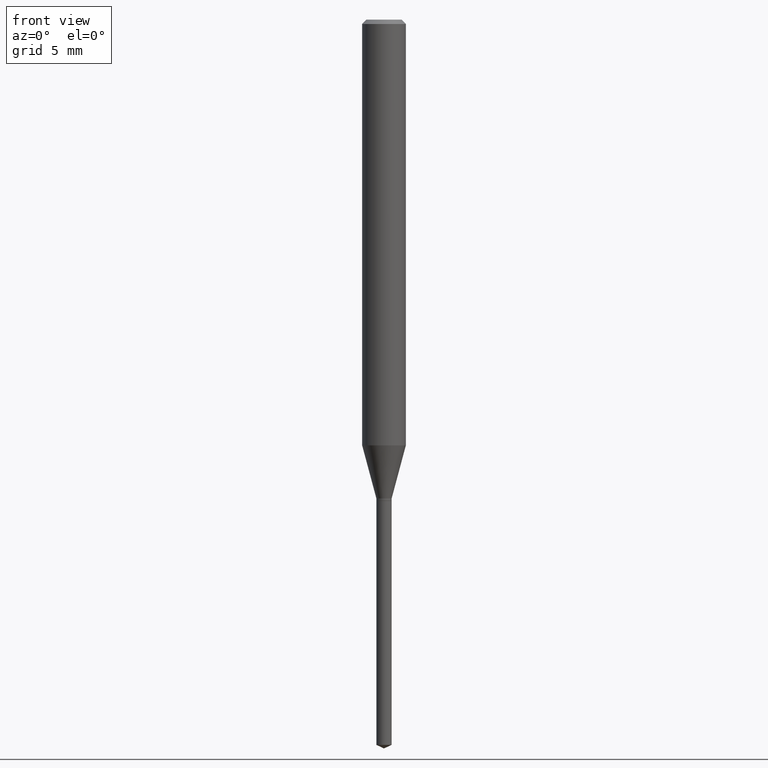
[diagram: clean part render]
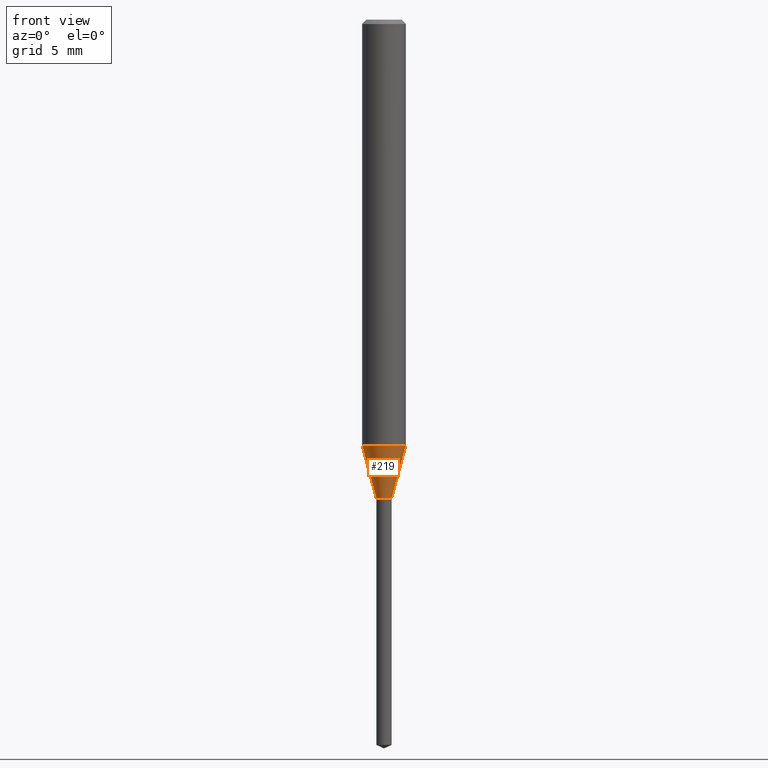
[diagram: same view with one face highlighted and labeled with its STEP entity id]
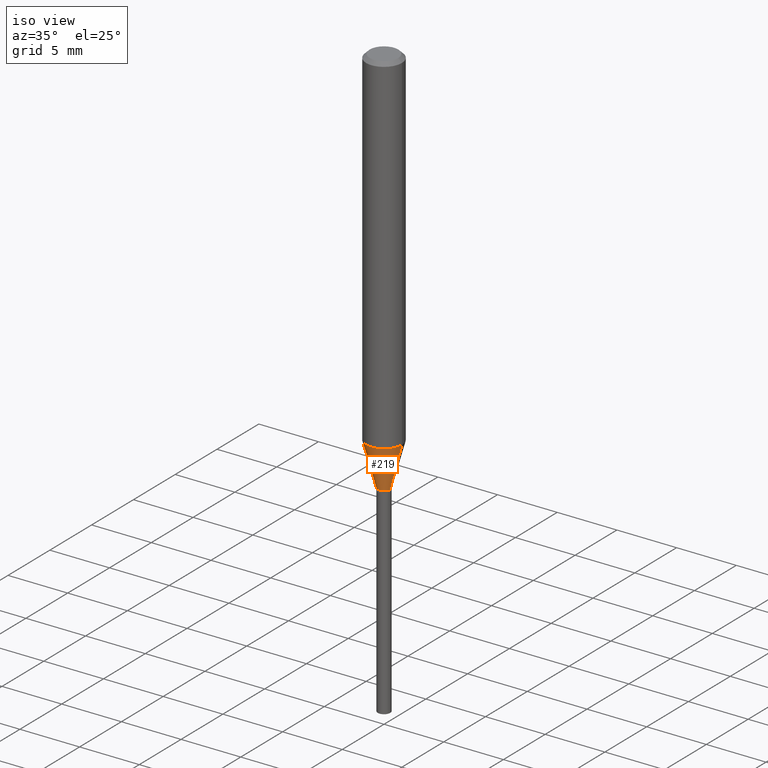
[diagram: same view with one face highlighted and labeled with its STEP entity id]
A machine part, front view. The second image highlights one B-rep face of the part: STEP entity #219.
A second angle (iso view) of the same face is appended — the face is thin or edge-on in the first view.
In plain terms, the highlighted conical surface has half-angle 15 deg.
Its self-contained STEP definition (entity closure, byte-faithful):
#9 = CARTESIAN_POINT ( 'NONE',  ( 3.163213900800474296E-29, -4.516231111793608804E-15, -1.293500000000000094 ) ) ;
#27 = CARTESIAN_POINT ( 'NONE',  ( -0.02065000000000002944, -4.379454758674850674E-15, -1.293500000000000094 ) ) ;
#35 = AXIS2_PLACEMENT_3D ( 'NONE', #216, #178, #324 ) ;
#42 = AXIS2_PLACEMENT_3D ( 'NONE', #9, #416, #197 ) ;
#52 = LINE ( 'NONE', #359, #215 ) ;
#53 = CONICAL_SURFACE ( 'NONE', #42, 0.02065000000000002944, 0.2617993877991499629 ) ;
#101 = EDGE_CURVE ( 'NONE', #363, #140, #338, .T. ) ;
#140 = VERTEX_POINT ( 'NONE', #235 ) ;
#159 = LINE ( 'NONE', #418, #322 ) ;
#167 = AXIS2_PLACEMENT_3D ( 'NONE', #206, #469, #463 ) ;
#178 = DIRECTION ( 'NONE',  ( -2.445468806185136597E-29, 3.491481338843145583E-15, 1.000000000000000000 ) ) ;
#188 = EDGE_CURVE ( 'NONE', #261, #140, #52, .T. ) ;
#197 = DIRECTION ( 'NONE',  ( 1.000000000000000000, -6.982962677686254878E-15, 0.000000000000000000 ) ) ;
#200 = EDGE_CURVE ( 'NONE', #473, #261, #433, .T. ) ;
#205 = ORIENTED_EDGE ( 'NONE', *, *, #253, .F. ) ;
#206 = CARTESIAN_POINT ( 'NONE',  ( 2.812751929612976794E-29, -4.015864298984345288E-15, -1.150189248989355040 ) ) ;
#215 = VECTOR ( 'NONE', #399, 39.37007874015748854 ) ;
#216 = CARTESIAN_POINT ( 'NONE',  ( 3.163213900800474296E-29, -4.516231111793608804E-15, -1.293500000000000094 ) ) ;
#219 = ADVANCED_FACE ( 'NONE', ( #227 ), #53, .T. ) ;
#222 = ORIENTED_EDGE ( 'NONE', *, *, #188, .T. ) ;
#227 = FACE_OUTER_BOUND ( 'NONE', #316, .T. ) ;
#235 = CARTESIAN_POINT ( 'NONE',  ( 0.05905000000000015098, -4.428208245101720208E-15, -1.150189248989355040 ) ) ;
#243 = ORIENTED_EDGE ( 'NONE', *, *, #200, .T. ) ;
#253 = EDGE_CURVE ( 'NONE', #473, #363, #159, .T. ) ;
#261 = VERTEX_POINT ( 'NONE', #468 ) ;
#315 = CARTESIAN_POINT ( 'NONE',  ( -0.05905000000000015098, -3.596288813518005006E-15, -1.150189248989355040 ) ) ;
#316 = EDGE_LOOP ( 'NONE', ( #205, #243, #222, #353 ) ) ;
#322 = VECTOR ( 'NONE', #458, 39.37007874015748854 ) ;
#324 = DIRECTION ( 'NONE',  ( 1.000000000000000000, -6.982962677686254878E-15, 0.000000000000000000 ) ) ;
#338 = CIRCLE ( 'NONE', #167, 0.05905000000000014404 ) ;
#353 = ORIENTED_EDGE ( 'NONE', *, *, #101, .F. ) ;
#359 = CARTESIAN_POINT ( 'NONE',  ( 0.02065000000000002944, -4.660429291087830521E-15, -1.293500000000000094 ) ) ;
#363 = VERTEX_POINT ( 'NONE', #315 ) ;
#399 = DIRECTION ( 'NONE',  ( 0.2588190451025212391, 1.565188264969622362E-15, 0.9659258262890679791 ) ) ;
#416 = DIRECTION ( 'NONE',  ( -2.445468806185136597E-29, 3.491481338843145583E-15, 1.000000000000000000 ) ) ;
#418 = CARTESIAN_POINT ( 'NONE',  ( -0.02065000000000002944, -4.369504036859147709E-15, -1.293500000000000094 ) ) ;
#433 = CIRCLE ( 'NONE', #35, 0.02065000000000002944 ) ;
#458 = DIRECTION ( 'NONE',  ( -0.2588190451025212391, 5.211531920934549464E-15, 0.9659258262890679791 ) ) ;
#463 = DIRECTION ( 'NONE',  ( 1.000000000000000000, -6.982962677686272233E-15, 0.000000000000000000 ) ) ;
#468 = CARTESIAN_POINT ( 'NONE',  ( 0.02065000000000002944, -4.660429291087830521E-15, -1.293500000000000094 ) ) ;
#469 = DIRECTION ( 'NONE',  ( -2.445468806185136597E-29, 3.491481338843145583E-15, 1.000000000000000000 ) ) ;
#473 = VERTEX_POINT ( 'NONE', #27 ) ;